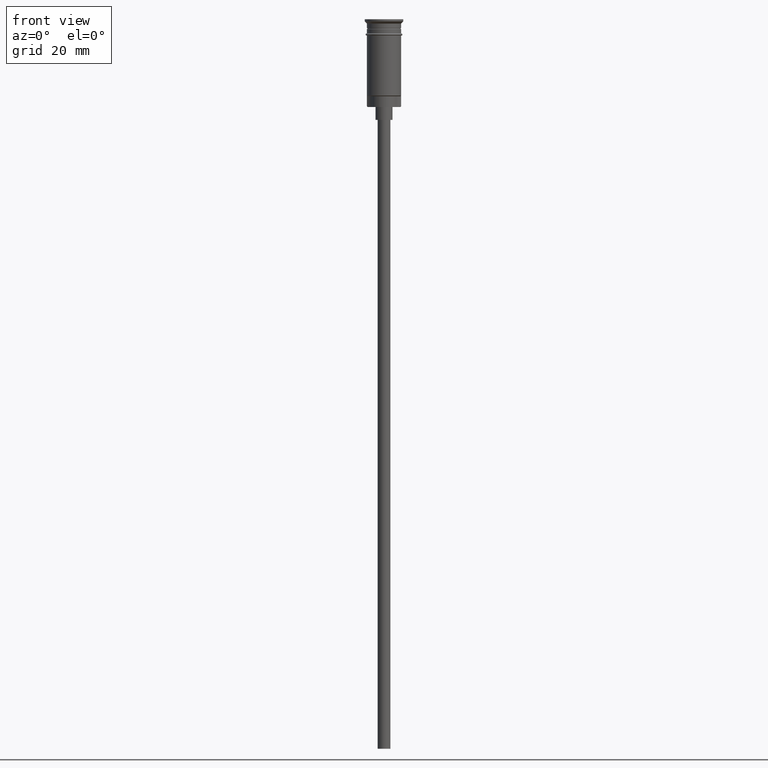
[diagram: clean part render]
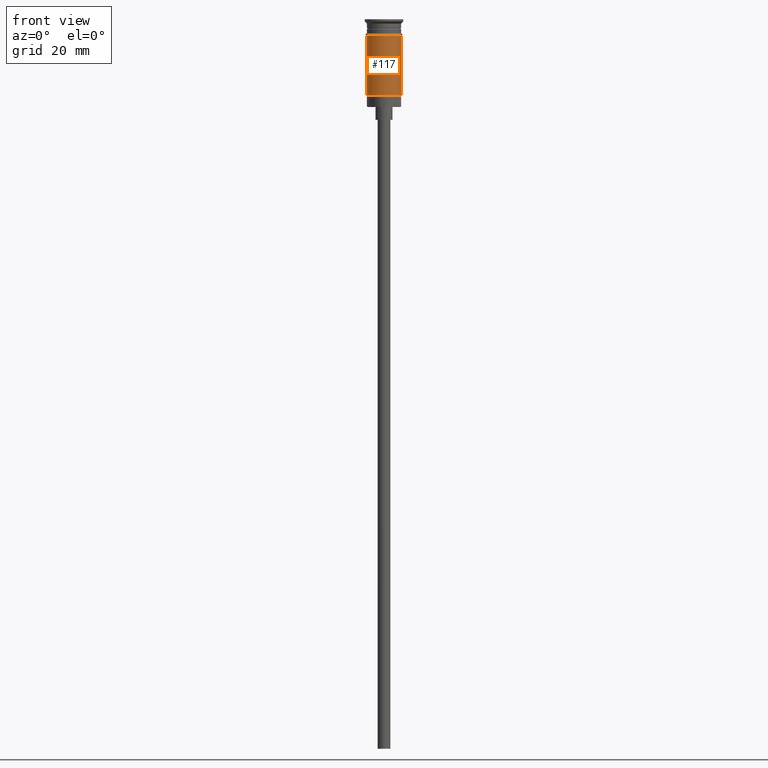
[diagram: same view with one face highlighted and labeled with its STEP entity id]
A machine part, front view. The second image highlights one B-rep face of the part: STEP entity #117.
In plain terms, the highlighted cylindrical surface (edge-blend (fillet) strip) has radius 4 mm, axis along (-0, -0, 1).
Its self-contained STEP definition (entity closure, byte-faithful):
#67 = CARTESIAN_POINT ( 'NONE',  ( 4.000000000000000000, 4.898587196589412829E-16, -17.79999999999998295 ) ) ;
#91 = CARTESIAN_POINT ( 'NONE',  ( -4.000000000000000000, 4.898587196589412829E-16, 0.000000000000000000 ) ) ;
#117 = ADVANCED_FACE ( 'NONE', ( #787 ), #1043, .T. ) ;
#175 = CARTESIAN_POINT ( 'NONE',  ( 0.000000000000000000, 0.000000000000000000, 0.000000000000000000 ) ) ;
#182 = LINE ( 'NONE', #670, #984 ) ;
#201 = EDGE_CURVE ( 'NONE', #889, #509, #1463, .T. ) ;
#234 = EDGE_LOOP ( 'NONE', ( #318, #573, #1105, #394 ) ) ;
#243 = CIRCLE ( 'NONE', #819, 4.000000000000000000 ) ;
#318 = ORIENTED_EDGE ( 'NONE', *, *, #201, .F. ) ;
#371 = VECTOR ( 'NONE', #709, 1000.000000000000000 ) ;
#388 = CARTESIAN_POINT ( 'NONE',  ( -3.999999999999997335, 0.000000000000000000, -17.79999999999998295 ) ) ;
#394 = ORIENTED_EDGE ( 'NONE', *, *, #1116, .F. ) ;
#409 = EDGE_CURVE ( 'NONE', #889, #1020, #960, .T. ) ;
#422 = VERTEX_POINT ( 'NONE', #896 ) ;
#438 = EDGE_CURVE ( 'NONE', #1020, #422, #182, .T. ) ;
#509 = VERTEX_POINT ( 'NONE', #828 ) ;
#573 = ORIENTED_EDGE ( 'NONE', *, *, #409, .T. ) ;
#670 = CARTESIAN_POINT ( 'NONE',  ( 4.000000000000000000, 0.000000000000000000, 0.000000000000000000 ) ) ;
#709 = DIRECTION ( 'NONE',  ( -0.000000000000000000, -0.000000000000000000, 1.000000000000000000 ) ) ;
#769 = DIRECTION ( 'NONE',  ( -0.000000000000000000, -0.000000000000000000, 1.000000000000000000 ) ) ;
#787 = FACE_OUTER_BOUND ( 'NONE', #234, .T. ) ;
#796 = AXIS2_PLACEMENT_3D ( 'NONE', #1524, #925, #1164 ) ;
#819 = AXIS2_PLACEMENT_3D ( 'NONE', #1539, #1553, #1410 ) ;
#828 = CARTESIAN_POINT ( 'NONE',  ( -4.000000000000000000, 4.898587196589412829E-16, -3.799999999999998490 ) ) ;
#889 = VERTEX_POINT ( 'NONE', #388 ) ;
#896 = CARTESIAN_POINT ( 'NONE',  ( 4.000000000000000000, 0.000000000000000000, -3.799999999999998490 ) ) ;
#925 = DIRECTION ( 'NONE',  ( -0.000000000000000000, -0.000000000000000000, 1.000000000000000000 ) ) ;
#960 = CIRCLE ( 'NONE', #796, 4.000000000000000000 ) ;
#984 = VECTOR ( 'NONE', #1516, 1000.000000000000000 ) ;
#1020 = VERTEX_POINT ( 'NONE', #67 ) ;
#1043 = CYLINDRICAL_SURFACE ( 'NONE', #1226, 4.000000000000000000 ) ;
#1050 = DIRECTION ( 'NONE',  ( 1.000000000000000000, 0.000000000000000000, 0.000000000000000000 ) ) ;
#1105 = ORIENTED_EDGE ( 'NONE', *, *, #438, .T. ) ;
#1116 = EDGE_CURVE ( 'NONE', #509, #422, #243, .T. ) ;
#1164 = DIRECTION ( 'NONE',  ( -1.000000000000000000, 0.000000000000000000, 0.000000000000000000 ) ) ;
#1226 = AXIS2_PLACEMENT_3D ( 'NONE', #175, #769, #1050 ) ;
#1410 = DIRECTION ( 'NONE',  ( 1.000000000000000000, 0.000000000000000000, 0.000000000000000000 ) ) ;
#1463 = LINE ( 'NONE', #91, #371 ) ;
#1516 = DIRECTION ( 'NONE',  ( -0.000000000000000000, -0.000000000000000000, 1.000000000000000000 ) ) ;
#1524 = CARTESIAN_POINT ( 'NONE',  ( 0.000000000000000000, 0.000000000000000000, -17.79999999999998295 ) ) ;
#1539 = CARTESIAN_POINT ( 'NONE',  ( 0.000000000000000000, 0.000000000000000000, -3.799999999999998490 ) ) ;
#1553 = DIRECTION ( 'NONE',  ( -0.000000000000000000, -0.000000000000000000, 1.000000000000000000 ) ) ;